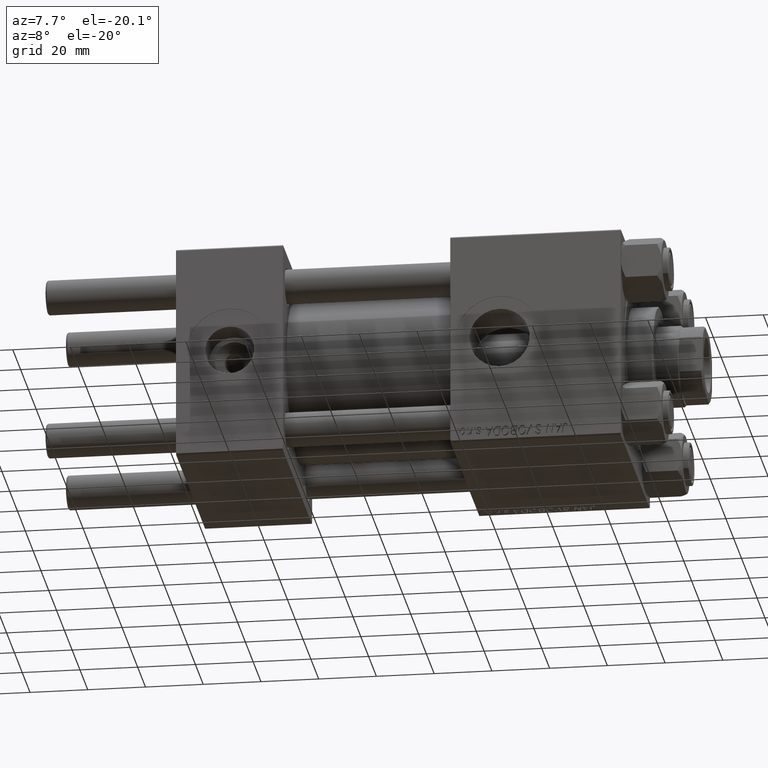
[diagram: clean part render]
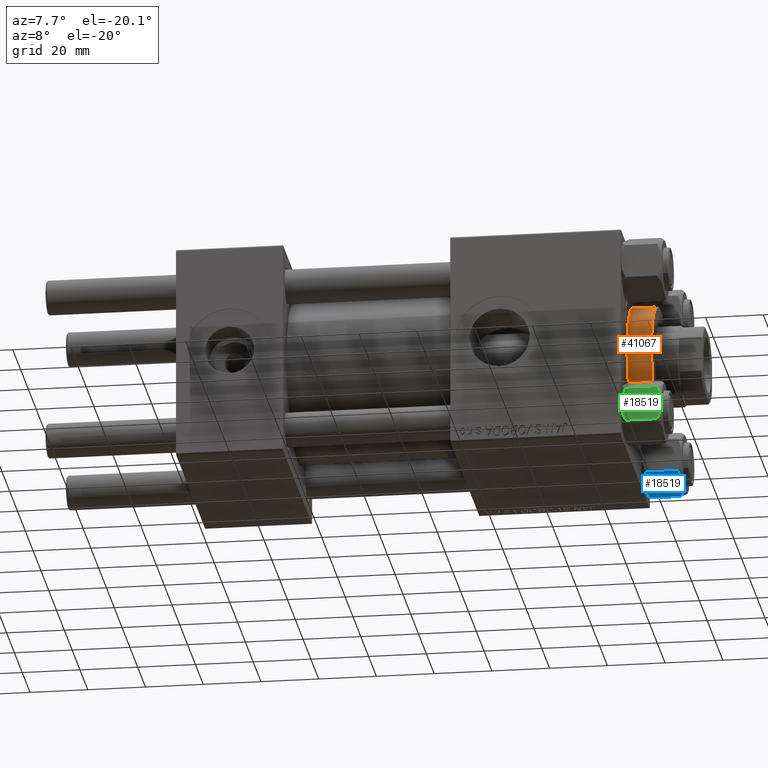
[diagram: same view with three faces highlighted in distinct colors, each labeled with its STEP entity id]
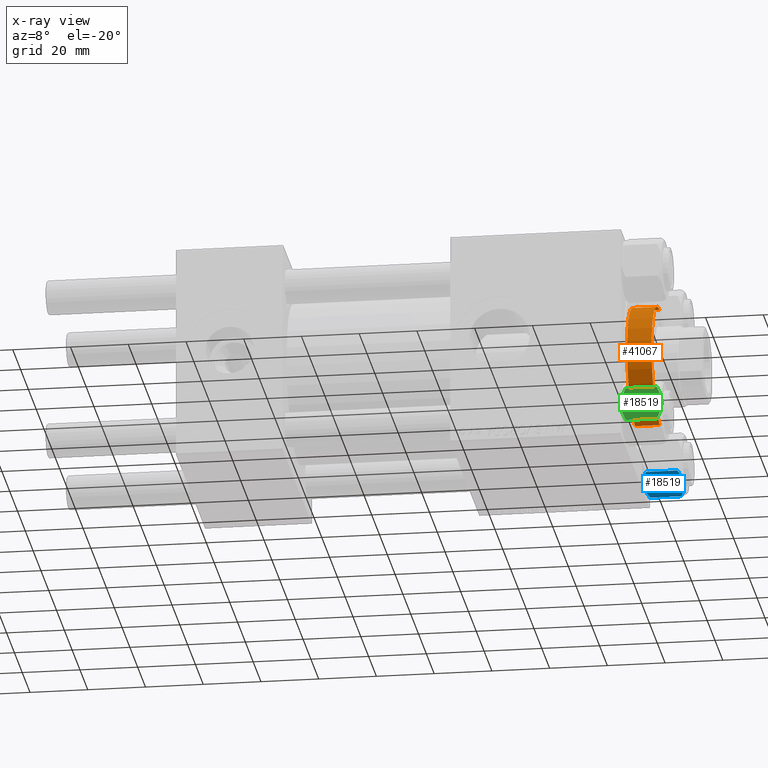
[diagram: x-ray of the same camera — body ghosted, the three highlighted faces saturated]
A machine part, auxiliary view with three faces highlighted in distinct colors.
The next image is the same camera in x-ray (body ghosted, the three faces saturated) — at least one of them is partly hidden behind the body in this view.
Their STEP definitions:

[orange] entity #41067 — the highlighted cylindrical surface (partial cylindrical patch) has radius 21 mm, axis along (-1, -0, 0).
#348 = DIRECTION ( 'NONE',  ( -0.000000000000000000, -0.000000000000000000, -1.000000000000000000 ) ) ;
#378 = CARTESIAN_POINT ( 'NONE',  ( 21.00000000000000000, 2.571758278209441661E-15, 37.19999999999999574 ) ) ;
#976 = DIRECTION ( 'NONE',  ( 0.000000000000000000, 0.000000000000000000, -1.000000000000000000 ) ) ;
#2102 = CARTESIAN_POINT ( 'NONE',  ( -21.00000000000000000, 0.000000000000000000, 37.69999999999999574 ) ) ;
#2565 = CARTESIAN_POINT ( 'NONE',  ( 0.000000000000000000, 0.000000000000000000, 37.69999999999999574 ) ) ;
#2654 = EDGE_CURVE ( 'NONE', #33866, #36153, #14435, .T. ) ;
#2913 = AXIS2_PLACEMENT_3D ( 'NONE', #2565, #50060, #26972 ) ;
#3994 = EDGE_LOOP ( 'NONE', ( #18427, #24243, #48822, #38734 ) ) ;
#4046 = CARTESIAN_POINT ( 'NONE',  ( 21.00000000000000000, 2.571758278209441661E-15, 28.69999999999999929 ) ) ;
#9377 = CARTESIAN_POINT ( 'NONE',  ( 0.000000000000000000, 0.000000000000000000, 37.19999999999999574 ) ) ;
#9983 = DIRECTION ( 'NONE',  ( -0.000000000000000000, -0.000000000000000000, -1.000000000000000000 ) ) ;
#10448 = FACE_OUTER_BOUND ( 'NONE', #3994, .T. ) ;
#11712 = CARTESIAN_POINT ( 'NONE',  ( -21.00000000000000000, 0.000000000000000000, 28.69999999999999929 ) ) ;
#12690 = CARTESIAN_POINT ( 'NONE',  ( 21.00000000000000000, 2.571758278209441661E-15, 37.69999999999999574 ) ) ;
#14435 = LINE ( 'NONE', #2102, #32015 ) ;
#17117 = AXIS2_PLACEMENT_3D ( 'NONE', #9377, #976, #40621 ) ;
#17142 = LINE ( 'NONE', #12690, #33384 ) ;
#18427 = ORIENTED_EDGE ( 'NONE', *, *, #24123, .F. ) ;
#24123 = EDGE_CURVE ( 'NONE', #42368, #44700, #17142, .T. ) ;
#24243 = ORIENTED_EDGE ( 'NONE', *, *, #36053, .T. ) ;
#26972 = DIRECTION ( 'NONE',  ( -1.000000000000000000, 0.000000000000000000, 0.000000000000000000 ) ) ;
#29362 = DIRECTION ( 'NONE',  ( 0.000000000000000000, 0.000000000000000000, 1.000000000000000000 ) ) ;
#32015 = VECTOR ( 'NONE', #9983, 1000.000000000000000 ) ;
#33384 = VECTOR ( 'NONE', #348, 1000.000000000000000 ) ;
#33866 = VERTEX_POINT ( 'NONE', #47819 ) ;
#36053 = EDGE_CURVE ( 'NONE', #42368, #33866, #38088, .T. ) ;
#36153 = VERTEX_POINT ( 'NONE', #11712 ) ;
#38088 = CIRCLE ( 'NONE', #17117, 21.00000000000000000 ) ;
#38734 = ORIENTED_EDGE ( 'NONE', *, *, #51856, .T. ) ;
#40621 = DIRECTION ( 'NONE',  ( 1.000000000000000000, 0.000000000000000000, 0.000000000000000000 ) ) ;
#41067 = ADVANCED_FACE ( 'NONE', ( #10448 ), #42471, .T. ) ;
#41830 = AXIS2_PLACEMENT_3D ( 'NONE', #44840, #29362, #49539 ) ;
#42368 = VERTEX_POINT ( 'NONE', #378 ) ;
#42471 = CYLINDRICAL_SURFACE ( 'NONE', #2913, 21.00000000000000000 ) ;
#44700 = VERTEX_POINT ( 'NONE', #4046 ) ;
#44840 = CARTESIAN_POINT ( 'NONE',  ( 0.000000000000000000, 0.000000000000000000, 28.69999999999999929 ) ) ;
#47819 = CARTESIAN_POINT ( 'NONE',  ( -21.00000000000000000, 0.000000000000000000, 37.19999999999999574 ) ) ;
#48822 = ORIENTED_EDGE ( 'NONE', *, *, #2654, .T. ) ;
#49539 = DIRECTION ( 'NONE',  ( 1.000000000000000000, 0.000000000000000000, 0.000000000000000000 ) ) ;
#50060 = DIRECTION ( 'NONE',  ( -0.000000000000000000, -0.000000000000000000, -1.000000000000000000 ) ) ;
#51856 = EDGE_CURVE ( 'NONE', #36153, #44700, #51905, .T. ) ;
#51905 = CIRCLE ( 'NONE', #41830, 21.00000000000000000 ) ;

[blue] entity #18519 — the highlighted planar face has unit normal (-0, 0.5, 0.866).
#592 = EDGE_CURVE ( 'NONE', #29263, #5673, #51592, .T. ) ;
#758 = CARTESIAN_POINT ( 'NONE',  ( 10.69662495661650148, 1.599332489581338113, -13.28854452935654074 ) ) ;
#1163 = ORIENTED_EDGE ( 'NONE', *, *, #33119, .F. ) ;
#1790 = PLANE ( 'NONE',  #3150 ) ;
#2098 = CARTESIAN_POINT ( 'NONE',  ( 9.974696630283194310, 2.849749030213796885, -0.3002673809867452137 ) ) ;
#3150 = AXIS2_PLACEMENT_3D ( 'NONE', #21233, #45368, #37498 ) ;
#5355 = CARTESIAN_POINT ( 'NONE',  ( 8.714999999999994529, 5.031607595987588333, -14.00000000000000000 ) ) ;
#5673 = VERTEX_POINT ( 'NONE', #5355 ) ;
#6107 = DIRECTION ( 'NONE',  ( -0.000000000000000000, -0.000000000000000000, 1.000000000000000000 ) ) ;
#6451 = B_SPLINE_CURVE_WITH_KNOTS ( 'NONE', 3,
 ( #35942, #25157, #24122, #758, #36718, #28077 ),
 .UNSPECIFIED., .F., .F.,
 ( 4, 2, 4 ),
 ( 0.006022845781655595046, 0.009013049135303638493, 0.01200325248895168194 ),
 .UNSPECIFIED. ) ;
#8196 = EDGE_CURVE ( 'NONE', #29263, #22040, #30010, .T. ) ;
#10204 = ORIENTED_EDGE ( 'NONE', *, *, #27234, .F. ) ;
#11471 = CARTESIAN_POINT ( 'NONE',  ( 7.713000053756304375, 6.767122412062953174, -0.1545239700039927888 ) ) ;
#12849 = FACE_OUTER_BOUND ( 'NONE', #27551, .T. ) ;
#13152 = CARTESIAN_POINT ( 'NONE',  ( 11.61999999999999922, 7.247075248837498561E-15, -1.556784808024820999 ) ) ;
#14664 = VERTEX_POINT ( 'NONE', #46233 ) ;
#18519 = ADVANCED_FACE ( 'NONE', ( #12849 ), #1790, .F. ) ;
#18903 = CARTESIAN_POINT ( 'NONE',  ( 10.69859855102500923, 1.595914123792269601, -0.7141438259524722776 ) ) ;
#19594 = CARTESIAN_POINT ( 'NONE',  ( 11.61999999999999922, 7.035126978385350964E-15, -12.44321519197517922 ) ) ;
#19866 = CARTESIAN_POINT ( 'NONE',  ( 6.265018354709772197, 9.275100283241449972, -1.101766453314962924 ) ) ;
#21233 = CARTESIAN_POINT ( 'NONE',  ( 5.809999999999995168, 10.06321519197518377, -14.00000000000000000 ) ) ;
#22040 = VERTEX_POINT ( 'NONE', #25925 ) ;
#22493 = CARTESIAN_POINT ( 'NONE',  ( 6.731401448974984270, 8.467301068182921497, -13.28585617404752384 ) ) ;
#23088 = CARTESIAN_POINT ( 'NONE',  ( 8.714999999999994529, 5.031607595987588333, 0.000000000000000000 ) ) ;
#24122 = CARTESIAN_POINT ( 'NONE',  ( 9.716999946243698005, 3.296092779912230153, -13.84547602999601068 ) ) ;
#24389 = DIRECTION ( 'NONE',  ( -0.000000000000000000, -0.000000000000000000, 1.000000000000000000 ) ) ;
#25157 = CARTESIAN_POINT ( 'NONE',  ( 9.220295946303428636, 4.156409344131457573, -13.99999999999999822 ) ) ;
#25392 = EDGE_CURVE ( 'NONE', #5673, #37022, #6451, .T. ) ;
#25925 = CARTESIAN_POINT ( 'NONE',  ( 5.809999999999995168, 10.06321519197518377, -1.556784808024826106 ) ) ;
#26316 = CARTESIAN_POINT ( 'NONE',  ( 5.809999999999995168, 10.06321519197518377, -14.00000000000000000 ) ) ;
#26422 = CARTESIAN_POINT ( 'NONE',  ( 6.265545725125281074, 9.274186850887387479, -12.89876091710045891 ) ) ;
#26503 = CARTESIAN_POINT ( 'NONE',  ( 8.969430103550385169, 4.590921729663316242, -5.293955920339376330E-15 ) ) ;
#27234 = EDGE_CURVE ( 'NONE', #14664, #22040, #36367, .T. ) ;
#27551 = EDGE_LOOP ( 'NONE', ( #44067, #33545, #10204, #33223, #1163, #46649 ) ) ;
#27998 = VERTEX_POINT ( 'NONE', #13152 ) ;
#28077 = CARTESIAN_POINT ( 'NONE',  ( 11.61999999999999922, 7.035126978385350964E-15, -12.44321519197517922 ) ) ;
#28214 = CARTESIAN_POINT ( 'NONE',  ( 5.809999999999994280, 10.06321519197518377, -12.44321519197517389 ) ) ;
#28351 = CARTESIAN_POINT ( 'NONE',  ( 11.61999999999999922, 7.017202701192663836E-15, -14.00000000000000000 ) ) ;
#29263 = VERTEX_POINT ( 'NONE', #28214 ) ;
#30010 = LINE ( 'NONE', #26316, #50489 ) ;
#30716 = CARTESIAN_POINT ( 'NONE',  ( 9.227666995912100489, 4.143642311704127223, -0.03994118060691630862 ) ) ;
#31405 = CARTESIAN_POINT ( 'NONE',  ( 8.202333004087895674, 5.919572880271055659, -13.96005881939308502 ) ) ;
#32454 = CARTESIAN_POINT ( 'NONE',  ( 5.809999999999995168, 10.06321519197518377, -1.556784808024826106 ) ) ;
#33119 = EDGE_CURVE ( 'NONE', #37022, #27998, #48269, .T. ) ;
#33223 = ORIENTED_EDGE ( 'NONE', *, *, #51684, .F. ) ;
#33545 = ORIENTED_EDGE ( 'NONE', *, *, #8196, .T. ) ;
#34902 = CARTESIAN_POINT ( 'NONE',  ( 9.729165168613654657, 3.275021996682086378, -0.1903979688073500487 ) ) ;
#35942 = CARTESIAN_POINT ( 'NONE',  ( 8.714999999999994529, 5.031607595987588333, -14.00000000000000000 ) ) ;
#36367 = B_SPLINE_CURVE_WITH_KNOTS ( 'NONE', 3,
 ( #43731, #44254, #11471, #39795, #19866, #32454 ),
 .UNSPECIFIED., .F., .F.,
 ( 4, 2, 4 ),
 ( 0.006022845781655580301, 0.009013049135303631554, 0.01200325248895168020 ),
 .UNSPECIFIED. ) ;
#36718 = CARTESIAN_POINT ( 'NONE',  ( 11.16498164529021864, 0.7881149087337363524, -12.89823354668503974 ) ) ;
#37022 = VERTEX_POINT ( 'NONE', #19594 ) ;
#37498 = DIRECTION ( 'NONE',  ( 0.5000000000000002220, -0.8660254037844384856, 0.000000000000000000 ) ) ;
#37895 = B_SPLINE_CURVE_WITH_KNOTS ( 'NONE', 3,
 ( #38046, #38825, #18903, #2098, #34902, #30716, #26503, #23088 ),
 .UNSPECIFIED., .F., .F.,
 ( 4, 2, 2, 4 ),
 ( 2.544312114899127210E-07, 0.003011550106433536454, 0.004517197944044559245, 0.006022845781655580301 ),
 .UNSPECIFIED. ) ;
#38046 = CARTESIAN_POINT ( 'NONE',  ( 11.61999999999999922, 7.247075248837498561E-15, -1.556784808024820999 ) ) ;
#38498 = CARTESIAN_POINT ( 'NONE',  ( 7.700834831386342394, 6.788193195293096949, -13.80960203119265017 ) ) ;
#38825 = CARTESIAN_POINT ( 'NONE',  ( 11.16445427487471775, 0.7890283410878045078, -1.101239082899540200 ) ) ;
#39795 = CARTESIAN_POINT ( 'NONE',  ( 6.733375043383494685, 8.463882702393844326, -0.7114554706434600417 ) ) ;
#42441 = CARTESIAN_POINT ( 'NONE',  ( 5.809999999999994280, 10.06321519197518377, -12.44321519197517389 ) ) ;
#42948 = CARTESIAN_POINT ( 'NONE',  ( 8.714999999999994529, 5.031607595987588333, -14.00000000000000000 ) ) ;
#43731 = CARTESIAN_POINT ( 'NONE',  ( 8.714999999999994529, 5.031607595987588333, 0.000000000000000000 ) ) ;
#44067 = ORIENTED_EDGE ( 'NONE', *, *, #592, .F. ) ;
#44254 = CARTESIAN_POINT ( 'NONE',  ( 8.209704053696574633, 5.906805847843728863, -5.031375706690544014E-15 ) ) ;
#45368 = DIRECTION ( 'NONE',  ( -0.8660254037844385966, -0.5000000000000003331, 0.000000000000000000 ) ) ;
#46233 = CARTESIAN_POINT ( 'NONE',  ( 8.714999999999994529, 5.031607595987588333, 0.000000000000000000 ) ) ;
#46624 = CARTESIAN_POINT ( 'NONE',  ( 8.460569896449612770, 5.472293462311864864, -13.99999999999998934 ) ) ;
#46649 = ORIENTED_EDGE ( 'NONE', *, *, #25392, .F. ) ;
#48269 = LINE ( 'NONE', #28351, #50510 ) ;
#50489 = VECTOR ( 'NONE', #6107, 1000.000000000000000 ) ;
#50510 = VECTOR ( 'NONE', #24389, 1000.000000000000000 ) ;
#51065 = CARTESIAN_POINT ( 'NONE',  ( 7.455303369716803630, 7.213466161761386886, -13.69973261901325223 ) ) ;
#51592 = B_SPLINE_CURVE_WITH_KNOTS ( 'NONE', 3,
 ( #42441, #26422, #22493, #51065, #38498, #31405, #46624, #42948 ),
 .UNSPECIFIED., .F., .F.,
 ( 4, 2, 2, 4 ),
 ( 2.544312114902182352E-07, 0.003011550106433543827, 0.004517197944044569653, 0.006022845781655595046 ),
 .UNSPECIFIED. ) ;
#51684 = EDGE_CURVE ( 'NONE', #27998, #14664, #37895, .T. ) ;

[green] entity #18519 — the highlighted planar face has unit normal (-0, 1, 0).
#592 = EDGE_CURVE ( 'NONE', #29263, #5673, #51592, .T. ) ;
#758 = CARTESIAN_POINT ( 'NONE',  ( 10.69662495661650148, 1.599332489581338113, -13.28854452935654074 ) ) ;
#1163 = ORIENTED_EDGE ( 'NONE', *, *, #33119, .F. ) ;
#1790 = PLANE ( 'NONE',  #3150 ) ;
#2098 = CARTESIAN_POINT ( 'NONE',  ( 9.974696630283194310, 2.849749030213796885, -0.3002673809867452137 ) ) ;
#3150 = AXIS2_PLACEMENT_3D ( 'NONE', #21233, #45368, #37498 ) ;
#5355 = CARTESIAN_POINT ( 'NONE',  ( 8.714999999999994529, 5.031607595987588333, -14.00000000000000000 ) ) ;
#5673 = VERTEX_POINT ( 'NONE', #5355 ) ;
#6107 = DIRECTION ( 'NONE',  ( -0.000000000000000000, -0.000000000000000000, 1.000000000000000000 ) ) ;
#6451 = B_SPLINE_CURVE_WITH_KNOTS ( 'NONE', 3,
 ( #35942, #25157, #24122, #758, #36718, #28077 ),
 .UNSPECIFIED., .F., .F.,
 ( 4, 2, 4 ),
 ( 0.006022845781655595046, 0.009013049135303638493, 0.01200325248895168194 ),
 .UNSPECIFIED. ) ;
#8196 = EDGE_CURVE ( 'NONE', #29263, #22040, #30010, .T. ) ;
#10204 = ORIENTED_EDGE ( 'NONE', *, *, #27234, .F. ) ;
#11471 = CARTESIAN_POINT ( 'NONE',  ( 7.713000053756304375, 6.767122412062953174, -0.1545239700039927888 ) ) ;
#12849 = FACE_OUTER_BOUND ( 'NONE', #27551, .T. ) ;
#13152 = CARTESIAN_POINT ( 'NONE',  ( 11.61999999999999922, 7.247075248837498561E-15, -1.556784808024820999 ) ) ;
#14664 = VERTEX_POINT ( 'NONE', #46233 ) ;
#18519 = ADVANCED_FACE ( 'NONE', ( #12849 ), #1790, .F. ) ;
#18903 = CARTESIAN_POINT ( 'NONE',  ( 10.69859855102500923, 1.595914123792269601, -0.7141438259524722776 ) ) ;
#19594 = CARTESIAN_POINT ( 'NONE',  ( 11.61999999999999922, 7.035126978385350964E-15, -12.44321519197517922 ) ) ;
#19866 = CARTESIAN_POINT ( 'NONE',  ( 6.265018354709772197, 9.275100283241449972, -1.101766453314962924 ) ) ;
#21233 = CARTESIAN_POINT ( 'NONE',  ( 5.809999999999995168, 10.06321519197518377, -14.00000000000000000 ) ) ;
#22040 = VERTEX_POINT ( 'NONE', #25925 ) ;
#22493 = CARTESIAN_POINT ( 'NONE',  ( 6.731401448974984270, 8.467301068182921497, -13.28585617404752384 ) ) ;
#23088 = CARTESIAN_POINT ( 'NONE',  ( 8.714999999999994529, 5.031607595987588333, 0.000000000000000000 ) ) ;
#24122 = CARTESIAN_POINT ( 'NONE',  ( 9.716999946243698005, 3.296092779912230153, -13.84547602999601068 ) ) ;
#24389 = DIRECTION ( 'NONE',  ( -0.000000000000000000, -0.000000000000000000, 1.000000000000000000 ) ) ;
#25157 = CARTESIAN_POINT ( 'NONE',  ( 9.220295946303428636, 4.156409344131457573, -13.99999999999999822 ) ) ;
#25392 = EDGE_CURVE ( 'NONE', #5673, #37022, #6451, .T. ) ;
#25925 = CARTESIAN_POINT ( 'NONE',  ( 5.809999999999995168, 10.06321519197518377, -1.556784808024826106 ) ) ;
#26316 = CARTESIAN_POINT ( 'NONE',  ( 5.809999999999995168, 10.06321519197518377, -14.00000000000000000 ) ) ;
#26422 = CARTESIAN_POINT ( 'NONE',  ( 6.265545725125281074, 9.274186850887387479, -12.89876091710045891 ) ) ;
#26503 = CARTESIAN_POINT ( 'NONE',  ( 8.969430103550385169, 4.590921729663316242, -5.293955920339376330E-15 ) ) ;
#27234 = EDGE_CURVE ( 'NONE', #14664, #22040, #36367, .T. ) ;
#27551 = EDGE_LOOP ( 'NONE', ( #44067, #33545, #10204, #33223, #1163, #46649 ) ) ;
#27998 = VERTEX_POINT ( 'NONE', #13152 ) ;
#28077 = CARTESIAN_POINT ( 'NONE',  ( 11.61999999999999922, 7.035126978385350964E-15, -12.44321519197517922 ) ) ;
#28214 = CARTESIAN_POINT ( 'NONE',  ( 5.809999999999994280, 10.06321519197518377, -12.44321519197517389 ) ) ;
#28351 = CARTESIAN_POINT ( 'NONE',  ( 11.61999999999999922, 7.017202701192663836E-15, -14.00000000000000000 ) ) ;
#29263 = VERTEX_POINT ( 'NONE', #28214 ) ;
#30010 = LINE ( 'NONE', #26316, #50489 ) ;
#30716 = CARTESIAN_POINT ( 'NONE',  ( 9.227666995912100489, 4.143642311704127223, -0.03994118060691630862 ) ) ;
#31405 = CARTESIAN_POINT ( 'NONE',  ( 8.202333004087895674, 5.919572880271055659, -13.96005881939308502 ) ) ;
#32454 = CARTESIAN_POINT ( 'NONE',  ( 5.809999999999995168, 10.06321519197518377, -1.556784808024826106 ) ) ;
#33119 = EDGE_CURVE ( 'NONE', #37022, #27998, #48269, .T. ) ;
#33223 = ORIENTED_EDGE ( 'NONE', *, *, #51684, .F. ) ;
#33545 = ORIENTED_EDGE ( 'NONE', *, *, #8196, .T. ) ;
#34902 = CARTESIAN_POINT ( 'NONE',  ( 9.729165168613654657, 3.275021996682086378, -0.1903979688073500487 ) ) ;
#35942 = CARTESIAN_POINT ( 'NONE',  ( 8.714999999999994529, 5.031607595987588333, -14.00000000000000000 ) ) ;
#36367 = B_SPLINE_CURVE_WITH_KNOTS ( 'NONE', 3,
 ( #43731, #44254, #11471, #39795, #19866, #32454 ),
 .UNSPECIFIED., .F., .F.,
 ( 4, 2, 4 ),
 ( 0.006022845781655580301, 0.009013049135303631554, 0.01200325248895168020 ),
 .UNSPECIFIED. ) ;
#36718 = CARTESIAN_POINT ( 'NONE',  ( 11.16498164529021864, 0.7881149087337363524, -12.89823354668503974 ) ) ;
#37022 = VERTEX_POINT ( 'NONE', #19594 ) ;
#37498 = DIRECTION ( 'NONE',  ( 0.5000000000000002220, -0.8660254037844384856, 0.000000000000000000 ) ) ;
#37895 = B_SPLINE_CURVE_WITH_KNOTS ( 'NONE', 3,
 ( #38046, #38825, #18903, #2098, #34902, #30716, #26503, #23088 ),
 .UNSPECIFIED., .F., .F.,
 ( 4, 2, 2, 4 ),
 ( 2.544312114899127210E-07, 0.003011550106433536454, 0.004517197944044559245, 0.006022845781655580301 ),
 .UNSPECIFIED. ) ;
#38046 = CARTESIAN_POINT ( 'NONE',  ( 11.61999999999999922, 7.247075248837498561E-15, -1.556784808024820999 ) ) ;
#38498 = CARTESIAN_POINT ( 'NONE',  ( 7.700834831386342394, 6.788193195293096949, -13.80960203119265017 ) ) ;
#38825 = CARTESIAN_POINT ( 'NONE',  ( 11.16445427487471775, 0.7890283410878045078, -1.101239082899540200 ) ) ;
#39795 = CARTESIAN_POINT ( 'NONE',  ( 6.733375043383494685, 8.463882702393844326, -0.7114554706434600417 ) ) ;
#42441 = CARTESIAN_POINT ( 'NONE',  ( 5.809999999999994280, 10.06321519197518377, -12.44321519197517389 ) ) ;
#42948 = CARTESIAN_POINT ( 'NONE',  ( 8.714999999999994529, 5.031607595987588333, -14.00000000000000000 ) ) ;
#43731 = CARTESIAN_POINT ( 'NONE',  ( 8.714999999999994529, 5.031607595987588333, 0.000000000000000000 ) ) ;
#44067 = ORIENTED_EDGE ( 'NONE', *, *, #592, .F. ) ;
#44254 = CARTESIAN_POINT ( 'NONE',  ( 8.209704053696574633, 5.906805847843728863, -5.031375706690544014E-15 ) ) ;
#45368 = DIRECTION ( 'NONE',  ( -0.8660254037844385966, -0.5000000000000003331, 0.000000000000000000 ) ) ;
#46233 = CARTESIAN_POINT ( 'NONE',  ( 8.714999999999994529, 5.031607595987588333, 0.000000000000000000 ) ) ;
#46624 = CARTESIAN_POINT ( 'NONE',  ( 8.460569896449612770, 5.472293462311864864, -13.99999999999998934 ) ) ;
#46649 = ORIENTED_EDGE ( 'NONE', *, *, #25392, .F. ) ;
#48269 = LINE ( 'NONE', #28351, #50510 ) ;
#50489 = VECTOR ( 'NONE', #6107, 1000.000000000000000 ) ;
#50510 = VECTOR ( 'NONE', #24389, 1000.000000000000000 ) ;
#51065 = CARTESIAN_POINT ( 'NONE',  ( 7.455303369716803630, 7.213466161761386886, -13.69973261901325223 ) ) ;
#51592 = B_SPLINE_CURVE_WITH_KNOTS ( 'NONE', 3,
 ( #42441, #26422, #22493, #51065, #38498, #31405, #46624, #42948 ),
 .UNSPECIFIED., .F., .F.,
 ( 4, 2, 2, 4 ),
 ( 2.544312114902182352E-07, 0.003011550106433543827, 0.004517197944044569653, 0.006022845781655595046 ),
 .UNSPECIFIED. ) ;
#51684 = EDGE_CURVE ( 'NONE', #27998, #14664, #37895, .T. ) ;